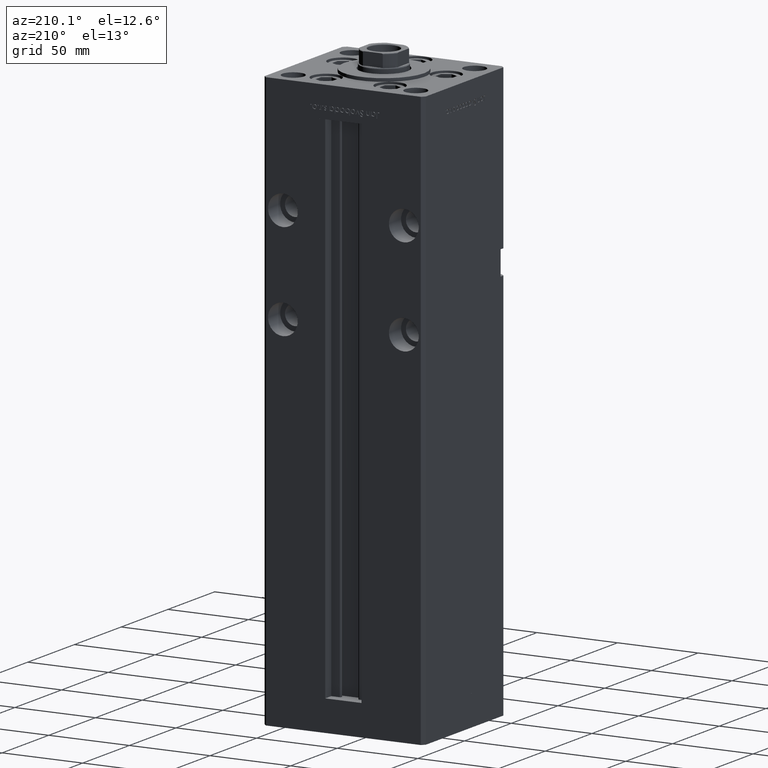
[diagram: clean part render]
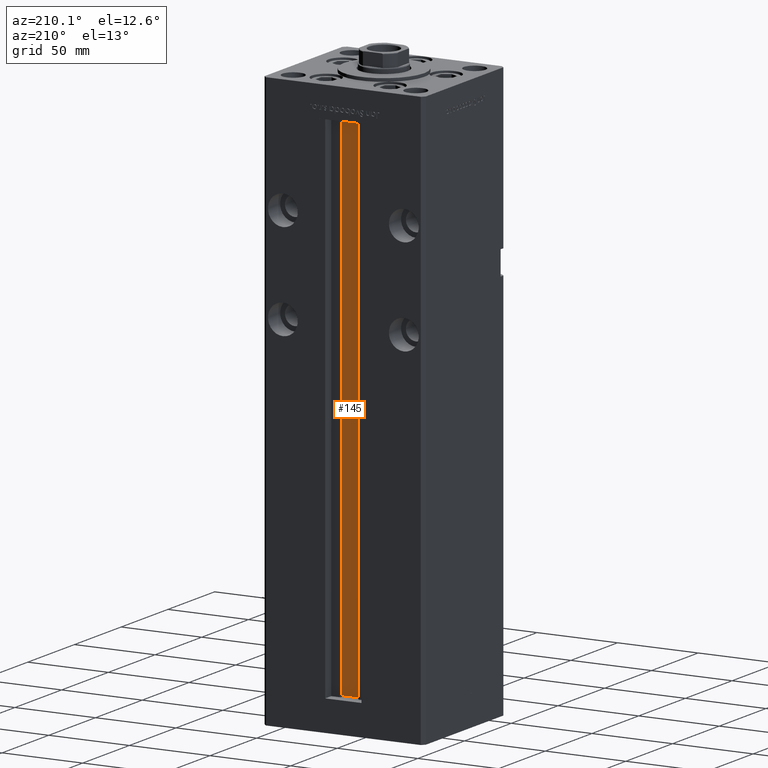
[diagram: same view with one face highlighted and labeled with its STEP entity id]
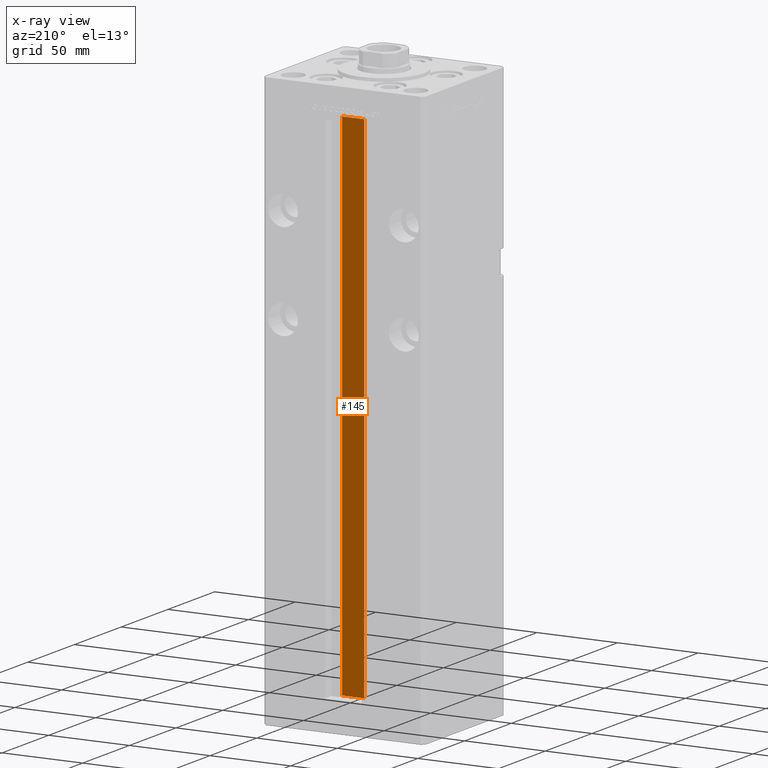
[diagram: x-ray of the same camera — body ghosted, the highlighted face saturated]
A machine part, auxiliary view. The second image highlights one B-rep face of the part: STEP entity #145.
The next image is the same camera in x-ray: the body ghosted, the highlighted face saturated — about 0% of this face is hidden behind the body in this view.
In plain terms, the highlighted planar face has unit normal (0, -1, 0).
Its self-contained STEP definition (entity closure, byte-faithful):
#145 = ADVANCED_FACE ( 'NONE', ( #33355 ), #13190, .F. ) ;
#217 = VECTOR ( 'NONE', #29831, 1000.000000000000000 ) ;
#840 = LINE ( 'NONE', #13710, #217 ) ;
#2145 = DIRECTION ( 'NONE',  ( -0.000000000000000000, -0.000000000000000000, 1.000000000000000000 ) ) ;
#4014 = AXIS2_PLACEMENT_3D ( 'NONE', #49756, #21507, #12930 ) ;
#5657 = VERTEX_POINT ( 'NONE', #22151 ) ;
#5663 = VERTEX_POINT ( 'NONE', #38040 ) ;
#8110 = ORIENTED_EDGE ( 'NONE', *, *, #31642, .F. ) ;
#10125 = VECTOR ( 'NONE', #37542, 1000.000000000000000 ) ;
#10205 = CARTESIAN_POINT ( 'NONE',  ( 6.876153656360465050, 32.99999999999986500, 0.000000000000000000 ) ) ;
#10300 = VECTOR ( 'NONE', #26166, 1000.000000000000000 ) ;
#10605 = VECTOR ( 'NONE', #2145, 1000.000000000000000 ) ;
#12930 = DIRECTION ( 'NONE',  ( 0.000000000000000000, 0.000000000000000000, -1.000000000000000000 ) ) ;
#13190 = PLANE ( 'NONE',  #4014 ) ;
#13710 = CARTESIAN_POINT ( 'NONE',  ( 6.876153656360465050, 32.99999999999986500, 0.000000000000000000 ) ) ;
#14230 = LINE ( 'NONE', #10205, #10605 ) ;
#14360 = EDGE_CURVE ( 'NONE', #32797, #34788, #38011, .T. ) ;
#18883 = ORIENTED_EDGE ( 'NONE', *, *, #14360, .T. ) ;
#21507 = DIRECTION ( 'NONE',  ( 0.000000000000000000, -1.000000000000000000, -0.000000000000000000 ) ) ;
#21662 = EDGE_LOOP ( 'NONE', ( #8110, #28009, #18883, #44661 ) ) ;
#22151 = CARTESIAN_POINT ( 'NONE',  ( 6.876153656360465050, 32.99999999999986500, 0.000000000000000000 ) ) ;
#25064 = EDGE_CURVE ( 'NONE', #32797, #5657, #840, .T. ) ;
#26166 = DIRECTION ( 'NONE',  ( -0.000000000000000000, -0.000000000000000000, 1.000000000000000000 ) ) ;
#28009 = ORIENTED_EDGE ( 'NONE', *, *, #25064, .F. ) ;
#28690 = CARTESIAN_POINT ( 'NONE',  ( -6.876153656360465050, 32.99999999999986500, 0.000000000000000000 ) ) ;
#29721 = LINE ( 'NONE', #46118, #10125 ) ;
#29831 = DIRECTION ( 'NONE',  ( 1.000000000000000000, -0.000000000000000000, -0.000000000000000000 ) ) ;
#31642 = EDGE_CURVE ( 'NONE', #5657, #5663, #14230, .T. ) ;
#32624 = CARTESIAN_POINT ( 'NONE',  ( -6.876153656360465050, 32.99999999999986500, 318.5000000000000000 ) ) ;
#32797 = VERTEX_POINT ( 'NONE', #28690 ) ;
#33355 = FACE_OUTER_BOUND ( 'NONE', #21662, .T. ) ;
#33964 = CARTESIAN_POINT ( 'NONE',  ( -6.876153656360465050, 32.99999999999986500, 0.000000000000000000 ) ) ;
#34788 = VERTEX_POINT ( 'NONE', #32624 ) ;
#37542 = DIRECTION ( 'NONE',  ( -1.000000000000000000, 0.000000000000000000, 0.000000000000000000 ) ) ;
#38011 = LINE ( 'NONE', #33964, #10300 ) ;
#38040 = CARTESIAN_POINT ( 'NONE',  ( 6.876153656360465050, 32.99999999999986500, 318.5000000000000000 ) ) ;
#44661 = ORIENTED_EDGE ( 'NONE', *, *, #48129, .F. ) ;
#46118 = CARTESIAN_POINT ( 'NONE',  ( 0.000000000000000000, 32.99999999999986500, 318.5000000000000000 ) ) ;
#48129 = EDGE_CURVE ( 'NONE', #5663, #34788, #29721, .T. ) ;
#49756 = CARTESIAN_POINT ( 'NONE',  ( 6.876153656360465050, 32.99999999999986500, 0.000000000000000000 ) ) ;